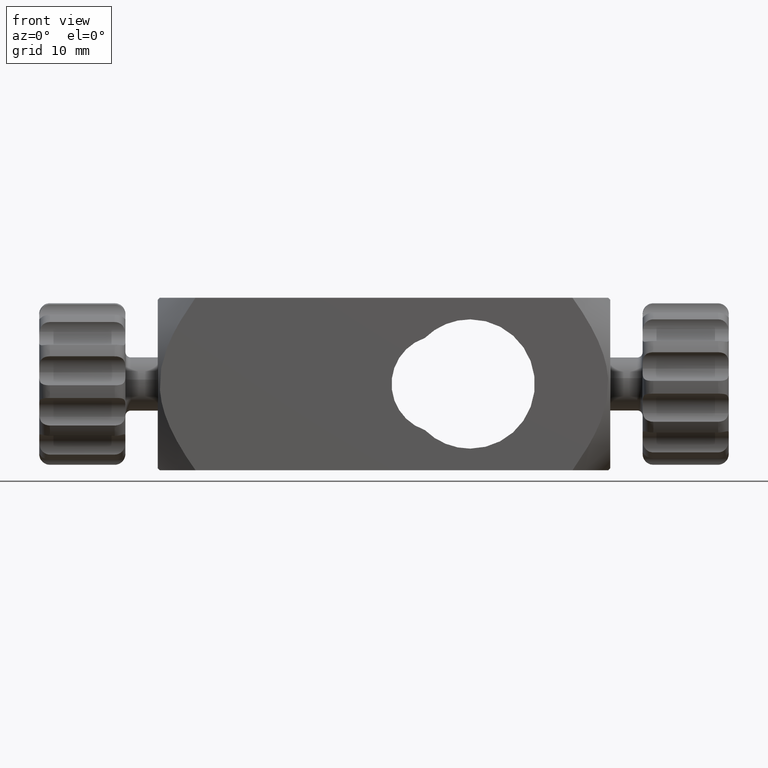
[diagram: clean part render]
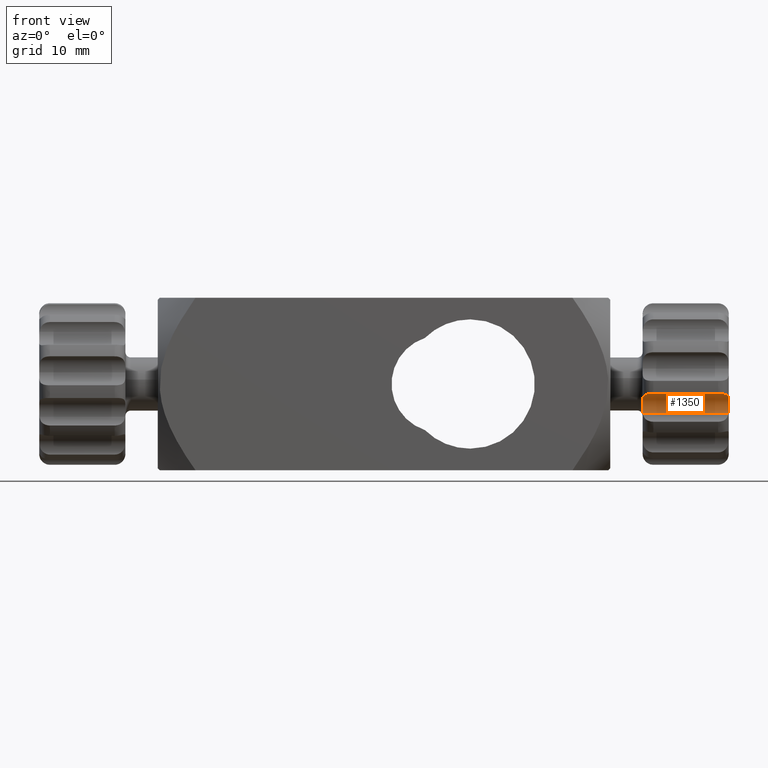
[diagram: same view with one face highlighted and labeled with its STEP entity id]
A machine part, front view. The second image highlights one B-rep face of the part: STEP entity #1350.
In plain terms, the highlighted cylindrical surface (edge-blend (fillet) strip) has radius 1.5 mm, axis along (-1, 0, -0).
Its self-contained STEP definition (entity closure, byte-faithful):
#112 = B_SPLINE_CURVE_WITH_KNOTS ( 'NONE', 3,
 ( #2958, #4796, #661, #2507, #2988, #3914 ),
 .UNSPECIFIED., .F., .F.,
 ( 4, 2, 4 ),
 ( 0.002250712572969183149, 0.002643561823292851429, 0.003036411073616520143 ),
 .UNSPECIFIED. ) ;
#180 = CARTESIAN_POINT ( 'NONE',  ( 24.80959761649457462, -7.446132304629178300, -0.8972812836454102658 ) ) ;
#181 = CARTESIAN_POINT ( 'NONE',  ( 32.00000000000000711, -6.172584347580353459, -2.713778322040954816 ) ) ;
#395 = CARTESIAN_POINT ( 'NONE',  ( 24.00000000000000000, -6.204372682150669505, -1.937978230319450823 ) ) ;
#468 = CYLINDRICAL_SURFACE ( 'NONE', #619, 1.500000000000001998 ) ;
#591 = VERTEX_POINT ( 'NONE', #1846 ) ;
#594 = CARTESIAN_POINT ( 'NONE',  ( 24.01868834842350253, -6.584732919990334388, -1.299263015662784237 ) ) ;
#619 = AXIS2_PLACEMENT_3D ( 'NONE', #2704, #925, #1405 ) ;
#661 = CARTESIAN_POINT ( 'NONE',  ( 32.00062819422458915, -6.142621418026445568, -2.194167706752474079 ) ) ;
#822 = CARTESIAN_POINT ( 'NONE',  ( 23.99937953697642712, -6.142673694429483078, -2.194032676221844280 ) ) ;
#855 = CARTESIAN_POINT ( 'NONE',  ( 31.19016829415997449, -7.446132304627636422, -0.8972812836456074415 ) ) ;
#907 = EDGE_CURVE ( 'NONE', #1812, #2409, #5100, .T. ) ;
#925 = DIRECTION ( 'NONE',  ( -1.000000000000000000, 2.081668171172181147E-17, -2.978764910297605146E-31 ) ) ;
#949 = CARTESIAN_POINT ( 'NONE',  ( 31.00000000000000000, -7.446132304627631093, -0.8972812836456135477 ) ) ;
#1004 = ORIENTED_EDGE ( 'NONE', *, *, #907, .F. ) ;
#1048 = ORIENTED_EDGE ( 'NONE', *, *, #2601, .F. ) ;
#1088 = CARTESIAN_POINT ( 'NONE',  ( 24.15331031335543699, -6.960132523891043199, -1.043286497408537405 ) ) ;
#1282 = CARTESIAN_POINT ( 'NONE',  ( 24.00000000000001776, -6.260158003118831083, -1.759377535094477363 ) ) ;
#1350 = ADVANCED_FACE ( 'NONE', ( #4571 ), #468, .F. ) ;
#1353 = ORIENTED_EDGE ( 'NONE', *, *, #5481, .F. ) ;
#1405 = DIRECTION ( 'NONE',  ( 0.000000000000000000, 0.9757126306666046300, -0.2190544734938188742 ) ) ;
#1424 = CARTESIAN_POINT ( 'NONE',  ( 31.95421380910946851, -6.735393965999798560, -1.173273735510490301 ) ) ;
#1781 = CARTESIAN_POINT ( 'NONE',  ( 32.00250569970266667, -6.350669688118126821, -1.589812260113403486 ) ) ;
#1812 = VERTEX_POINT ( 'NONE', #949 ) ;
#1813 = CARTESIAN_POINT ( 'NONE',  ( 31.84620838891366645, -6.960811882490851588, -1.043017382135958737 ) ) ;
#1814 = CARTESIAN_POINT ( 'NONE',  ( 24.00456837729993254, -6.132097634128304442, -2.454777763097981236 ) ) ;
#1846 = CARTESIAN_POINT ( 'NONE',  ( 24.02992434585393511, -6.172584347578245811, -2.713778322031559664 ) ) ;
#1976 = CARTESIAN_POINT ( 'NONE',  ( 24.00000000000000000, -6.204372682150669505, -1.937978230319450823 ) ) ;
#2009 = CARTESIAN_POINT ( 'NONE',  ( 25.00000000000001421, -7.446132304627643528, -0.8972812836456104391 ) ) ;
#2100 = VERTEX_POINT ( 'NONE', #4584 ) ;
#2222 = EDGE_CURVE ( 'NONE', #2100, #1812, #5645, .T. ) ;
#2324 = CARTESIAN_POINT ( 'NONE',  ( 28.00000000000000711, -7.446132304627630205, -0.8972812836456099950 ) ) ;
#2409 = VERTEX_POINT ( 'NONE', #4548 ) ;
#2466 = CARTESIAN_POINT ( 'NONE',  ( 24.62088410162425234, -7.388837519611642257, -0.9019579249567284407 ) ) ;
#2507 = CARTESIAN_POINT ( 'NONE',  ( 31.99540249244001799, -6.132106573978290065, -2.455715907837520806 ) ) ;
#2601 = EDGE_CURVE ( 'NONE', #5056, #2100, #3516, .T. ) ;
#2656 = CARTESIAN_POINT ( 'NONE',  ( 24.00000000000000000, -6.204372682150669505, -1.937978230319450823 ) ) ;
#2692 = CARTESIAN_POINT ( 'NONE',  ( 31.79828812739180677, -7.036754735298345942, -1.008208930386263580 ) ) ;
#2704 = CARTESIAN_POINT ( 'NONE',  ( 32.00000000000000711, -7.636153293580262513, -2.385196611800226130 ) ) ;
#2707 = ORIENTED_EDGE ( 'NONE', *, *, #2222, .F. ) ;
#2717 = CARTESIAN_POINT ( 'NONE',  ( 31.68119459307460772, -7.173878165924486794, -0.9563245346753771470 ) ) ;
#2718 = CARTESIAN_POINT ( 'NONE',  ( 24.01063488013502578, -6.144126331761659898, -2.587020602666520119 ) ) ;
#2915 = CARTESIAN_POINT ( 'NONE',  ( 24.31680059425016793, -7.171961843929354430, -0.9569190927434076954 ) ) ;
#2916 = LINE ( 'NONE', #181, #4773 ) ;
#2958 = CARTESIAN_POINT ( 'NONE',  ( 32.00000000000000000, -6.204374551033957630, -1.937972247087684785 ) ) ;
#2960 = VECTOR ( 'NONE', #5612, 1000.000000000000000 ) ;
#2988 = CARTESIAN_POINT ( 'NONE',  ( 31.98954071526686960, -6.143867273434544529, -2.585866704839279606 ) ) ;
#3035 = EDGE_CURVE ( 'NONE', #2409, #5195, #112, .T. ) ;
#3111 = CARTESIAN_POINT ( 'NONE',  ( 23.99754889581959105, -6.350948717921172104, -1.589592579680655371 ) ) ;
#3119 = ORIENTED_EDGE ( 'NONE', *, *, #3035, .F. ) ;
#3167 = CARTESIAN_POINT ( 'NONE',  ( 31.99999999999999289, -6.260178878307310235, -1.759315948736326352 ) ) ;
#3516 = B_SPLINE_CURVE_WITH_KNOTS ( 'NONE', 3,
 ( #1976, #1282, #3111, #594, #5223, #1088, #4277, #2915, #3840, #2466, #180, #2009 ),
 .UNSPECIFIED., .F., .F.,
 ( 4, 2, 2, 2, 2, 4 ),
 ( 0.002250700011284083486, 0.002813171020795794501, 0.003375642030307505516, 0.003656877535063362324, 0.003938113039819219133, 0.004500584049330944025 ),
 .UNSPECIFIED. ) ;
#3567 = CARTESIAN_POINT ( 'NONE',  ( 24.02992434585393511, -6.172584347578245811, -2.713778322031559664 ) ) ;
#3676 = CARTESIAN_POINT ( 'NONE',  ( 32.00000000000000000, -6.204374551033957630, -1.937972247087684785 ) ) ;
#3739 = CARTESIAN_POINT ( 'NONE',  ( 31.00000000000000000, -7.446132304627631093, -0.8972812836456135477 ) ) ;
#3840 = CARTESIAN_POINT ( 'NONE',  ( 24.38690793741812968, -7.234737003701343205, -0.9389409339304473079 ) ) ;
#3841 = DIRECTION ( 'NONE',  ( -1.000000000000000000, 2.081668171172181147E-17, -2.978764910297605146E-31 ) ) ;
#3858 = EDGE_CURVE ( 'NONE', #5195, #591, #2916, .T. ) ;
#3914 = CARTESIAN_POINT ( 'NONE',  ( 31.97007565414464736, -6.172584347580358788, -2.713778322040967250 ) ) ;
#3962 = B_SPLINE_CURVE_WITH_KNOTS ( 'NONE', 3,
 ( #3567, #2718, #1814, #822, #5532, #395 ),
 .UNSPECIFIED., .F., .F.,
 ( 4, 2, 4 ),
 ( 0.001466424524473734651, 0.001858562267878908960, 0.002250700011284083486 ),
 .UNSPECIFIED. ) ;
#4168 = CARTESIAN_POINT ( 'NONE',  ( 31.37670695584174396, -7.389779018483534578, -0.9018455494168586828 ) ) ;
#4277 = CARTESIAN_POINT ( 'NONE',  ( 24.19969962631497040, -7.033951813543740883, -1.009404566898839617 ) ) ;
#4548 = CARTESIAN_POINT ( 'NONE',  ( 32.00000000000000000, -6.204374551033957630, -1.937972247087684785 ) ) ;
#4571 = FACE_OUTER_BOUND ( 'NONE', #4616, .T. ) ;
#4584 = CARTESIAN_POINT ( 'NONE',  ( 25.00000000000001421, -7.446132304627643528, -0.8972812836456104391 ) ) ;
#4616 = EDGE_LOOP ( 'NONE', ( #5900, #3119, #1004, #2707, #1048, #1353 ) ) ;
#4773 = VECTOR ( 'NONE', #3841, 1000.000000000000000 ) ;
#4796 = CARTESIAN_POINT ( 'NONE',  ( 32.00000000000000711, -6.165409807680815035, -2.062716996353904264 ) ) ;
#5015 = CARTESIAN_POINT ( 'NONE',  ( 31.61081791756818760, -7.236550185278698422, -0.9384502552234422756 ) ) ;
#5056 = VERTEX_POINT ( 'NONE', #2656 ) ;
#5100 = B_SPLINE_CURVE_WITH_KNOTS ( 'NONE', 3,
 ( #3739, #855, #4168, #5015, #2717, #2692, #1813, #1424, #5503, #1781, #3167, #3676 ),
 .UNSPECIFIED., .F., .F.,
 ( 4, 2, 2, 2, 2, 4 ),
 ( 1.972355051080920030E-07, 0.0005628260698711227712, 0.0008441404870541294007, 0.001125454904237135813, 0.001688083738603159264, 0.002250712572969183149 ),
 .UNSPECIFIED. ) ;
#5125 = CARTESIAN_POINT ( 'NONE',  ( 31.97007565414464736, -6.172584347580358788, -2.713778322040967250 ) ) ;
#5195 = VERTEX_POINT ( 'NONE', #5125 ) ;
#5223 = CARTESIAN_POINT ( 'NONE',  ( 24.04446049308119271, -6.731966445376128760, -1.175505127095820557 ) ) ;
#5481 = EDGE_CURVE ( 'NONE', #591, #5056, #3962, .T. ) ;
#5503 = CARTESIAN_POINT ( 'NONE',  ( 31.98118457777059831, -6.585812390234171865, -1.298049724954519979 ) ) ;
#5532 = CARTESIAN_POINT ( 'NONE',  ( 24.00000000000001066, -6.165477675051414863, -2.062503377508451585 ) ) ;
#5612 = DIRECTION ( 'NONE',  ( 1.000000000000000000, -2.081668171172181147E-17, 2.978764910297605146E-31 ) ) ;
#5645 = LINE ( 'NONE', #2324, #2960 ) ;
#5900 = ORIENTED_EDGE ( 'NONE', *, *, #3858, .F. ) ;